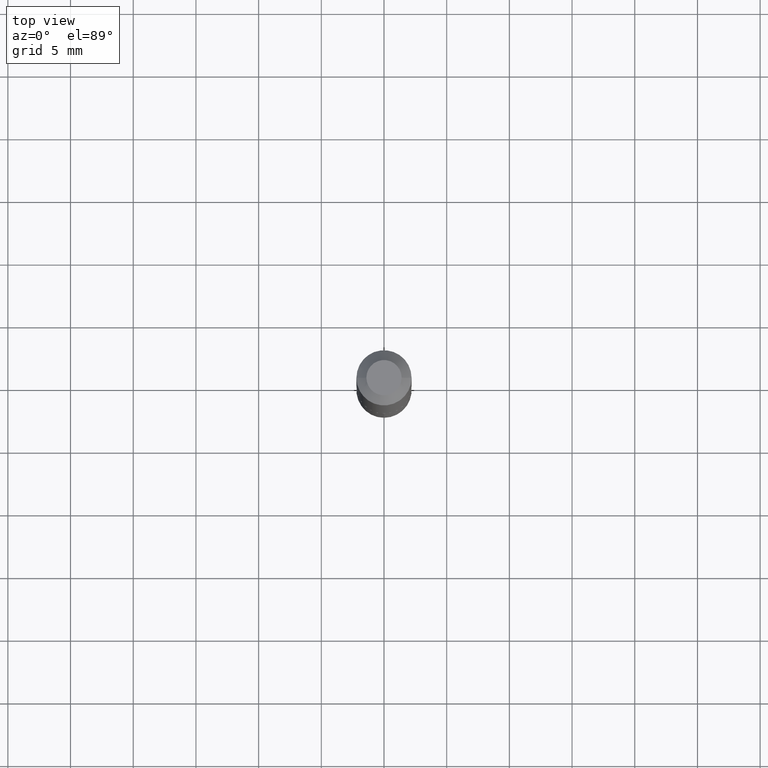
[diagram: clean part render]
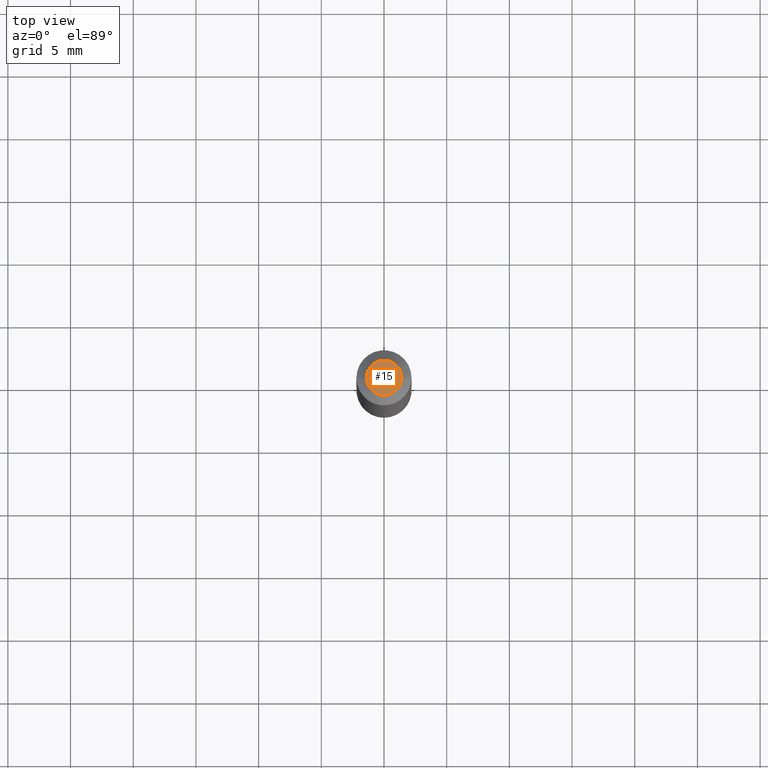
[diagram: same view with one face highlighted and labeled with its STEP entity id]
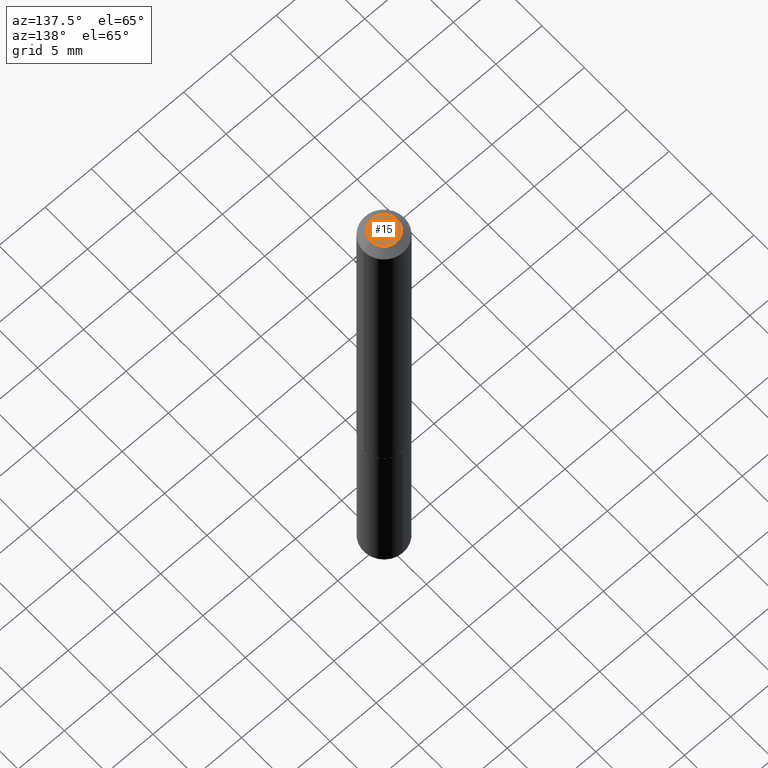
[diagram: same view with one face highlighted and labeled with its STEP entity id]
A machine part, top view. The second image highlights one B-rep face of the part: STEP entity #15.
A second angle (auxiliary view) of the same face is appended — the face is thin or edge-on in the first view.
In plain terms, the highlighted planar face has unit normal (0, -0, -1).
Its self-contained STEP definition (entity closure, byte-faithful):
#15 = ADVANCED_FACE ( 'NONE', ( #217 ), #32, .F. ) ;
#32 = PLANE ( 'NONE',  #117 ) ;
#51 = ORIENTED_EDGE ( 'NONE', *, *, #289, .T. ) ;
#58 = EDGE_CURVE ( 'NONE', #199, #209, #241, .T. ) ;
#64 = DIRECTION ( 'NONE',  ( -2.445468806185136597E-29, 3.491481338843145583E-15, 1.000000000000000000 ) ) ;
#71 = AXIS2_PLACEMENT_3D ( 'NONE', #329, #64, #389 ) ;
#72 = CARTESIAN_POINT ( 'NONE',  ( -0.05534999999999998949, 4.410613801293581608E-16, 2.388061258308374895E-19 ) ) ;
#117 = AXIS2_PLACEMENT_3D ( 'NONE', #215, #240, #239 ) ;
#128 = DIRECTION ( 'NONE',  ( -2.445468806185136597E-29, 3.491481338843145583E-15, 1.000000000000000000 ) ) ;
#149 = CIRCLE ( 'NONE', #333, 0.05534999999999998949 ) ;
#193 = DIRECTION ( 'NONE',  ( 1.000000000000000000, -6.982962677686266711E-15, 4.876151470398592516E-29 ) ) ;
#199 = VERTEX_POINT ( 'NONE', #273 ) ;
#209 = VERTEX_POINT ( 'NONE', #72 ) ;
#215 = CARTESIAN_POINT ( 'NONE',  ( -2.919964657261559142E-48, 4.168935659749500181E-34, 1.194030629168655274E-19 ) ) ;
#217 = FACE_OUTER_BOUND ( 'NONE', #378, .T. ) ;
#239 = DIRECTION ( 'NONE',  ( -1.000000000000000000, 6.982962677686265922E-15, -4.876176775795935793E-29 ) ) ;
#240 = DIRECTION ( 'NONE',  ( 2.438088387897960049E-29, -3.491481338843145188E-15, -1.000000000000000000 ) ) ;
#241 = CIRCLE ( 'NONE', #71, 0.05534999999999998949 ) ;
#273 = CARTESIAN_POINT ( 'NONE',  ( 0.05534999999999998949, -5.414782413112588911E-16, 2.388061258369751875E-19 ) ) ;
#289 = EDGE_CURVE ( 'NONE', #209, #199, #149, .T. ) ;
#306 = CARTESIAN_POINT ( 'NONE',  ( -5.839929314523118284E-48, 8.337871319499000362E-34, 2.388061258337310548E-19 ) ) ;
#320 = ORIENTED_EDGE ( 'NONE', *, *, #58, .T. ) ;
#329 = CARTESIAN_POINT ( 'NONE',  ( -5.839929314523118284E-48, 8.337871319499000362E-34, 2.388061258337310548E-19 ) ) ;
#333 = AXIS2_PLACEMENT_3D ( 'NONE', #306, #128, #193 ) ;
#378 = EDGE_LOOP ( 'NONE', ( #51, #320 ) ) ;
#389 = DIRECTION ( 'NONE',  ( 1.000000000000000000, -6.982962677686266711E-15, 4.876151470398592516E-29 ) ) ;